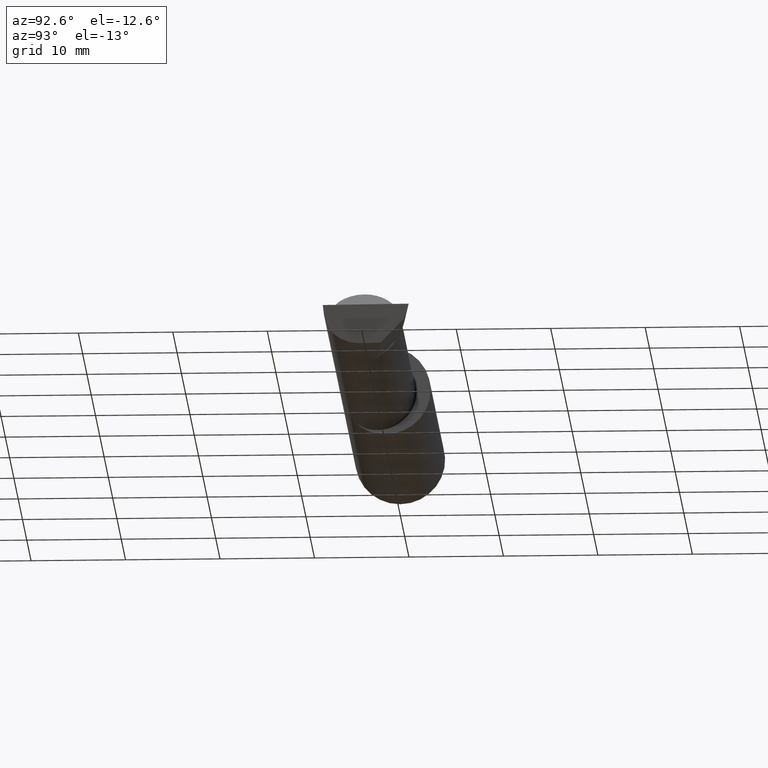
[diagram: clean part render]
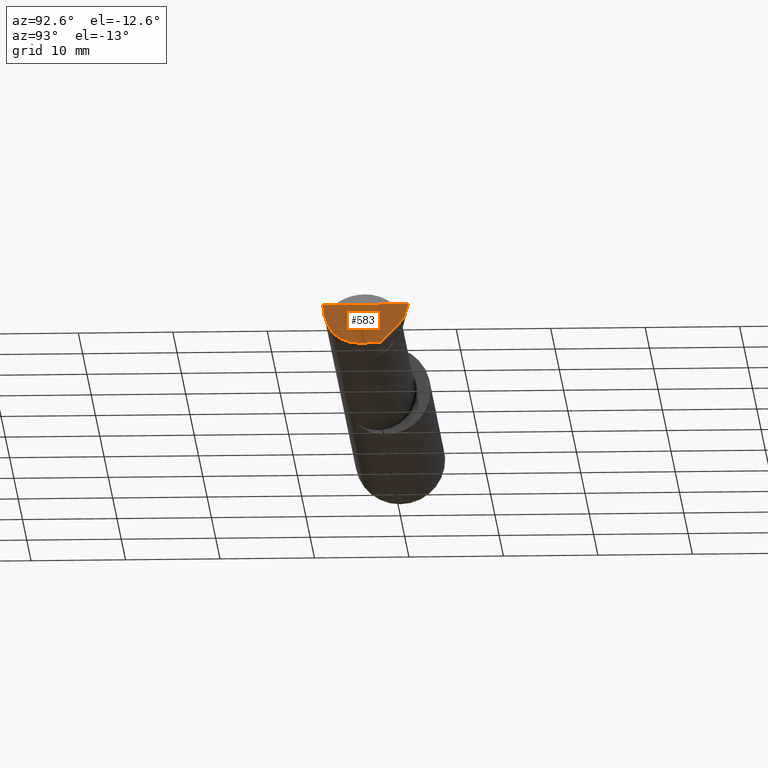
[diagram: same view with one face highlighted and labeled with its STEP entity id]
A machine part, auxiliary view. The second image highlights one B-rep face of the part: STEP entity #583.
In plain terms, the highlighted planar face has unit normal (-0.9922, 0.026, 0.1219).
Its self-contained STEP definition (entity closure, byte-faithful):
#17 = VERTEX_POINT ( 'NONE', #418 ) ;
#32 = VERTEX_POINT ( 'NONE', #614 ) ;
#79 = CARTESIAN_POINT ( 'NONE',  ( 2.990625440078235275, -0.1873499999999999888, -6.696573958807117964E-17 ) ) ;
#83 = CARTESIAN_POINT ( 'NONE',  ( 2.974910817315466360, -0.03674301662998789159, -0.1600499999999999701 ) ) ;
#91 = DIRECTION ( 'NONE',  ( -0.02617694830786920432, -0.9996573249755573709, 0.000000000000000000 ) ) ;
#98 = LINE ( 'NONE', #151, #330 ) ;
#104 = AXIS2_PLACEMENT_3D ( 'NONE', #626, #478, #622 ) ;
#143 = ORIENTED_EDGE ( 'NONE', *, *, #276, .F. ) ;
#151 = CARTESIAN_POINT ( 'NONE',  ( 2.992483720199183850, 0.1538199878950237132, -0.05760614975163640822 ) ) ;
#155 = CARTESIAN_POINT ( 'NONE',  ( 2.988992440003207296, -0.2497117568972559432, -6.673801155297139976E-17 ) ) ;
#164 = EDGE_CURVE ( 'NONE', #278, #395, #236, .T. ) ;
#192 = FACE_OUTER_BOUND ( 'NONE', #355, .T. ) ;
#195 = VECTOR ( 'NONE', #299, 39.37007874015748143 ) ;
#196 = CARTESIAN_POINT ( 'NONE',  ( 2.973833329693937433, -0.07789060880782650020, -0.1600499999999999423 ) ) ;
#204 =( BOUNDED_CURVE ( )  B_SPLINE_CURVE ( 3, ( #597, #213, #350, #261 ),
 .UNSPECIFIED., .F., .T. ) 
 B_SPLINE_CURVE_WITH_KNOTS ( ( 4, 4 ),
 ( 0.6791649766275701383, 1.360746882514768163 ),
 .UNSPECIFIED. ) 
 CURVE ( )  GEOMETRIC_REPRESENTATION_ITEM ( )  RATIONAL_B_SPLINE_CURVE ( ( 1.000000000000000000, 0.9616603987079548332, 0.9616603987079548332, 1.000000000000000000 ) ) 
 REPRESENTATION_ITEM ( '' )  );
#210 = VERTEX_POINT ( 'NONE', #432 ) ;
#213 = CARTESIAN_POINT ( 'NONE',  ( 2.980648201915111262, -0.1728409665178086418, -0.08432347972837196670 ) ) ;
#226 = EDGE_CURVE ( 'NONE', #32, #210, #485, .T. ) ;
#236 = LINE ( 'NONE', #386, #195 ) ;
#239 = DIRECTION ( 'NONE',  ( 0.1053106618241816950, 0.6976485211320171409, 0.7086580314005213044 ) ) ;
#240 = CARTESIAN_POINT ( 'NONE',  ( 2.977223734188810589, -0.1454917112299465021, -0.1180346748349054287 ) ) ;
#261 = CARTESIAN_POINT ( 'NONE',  ( 2.990625440078235275, -0.1873499999999999888, -6.696573958807117964E-17 ) ) ;
#276 = EDGE_CURVE ( 'NONE', #335, #395, #297, .T. ) ;
#278 = VERTEX_POINT ( 'NONE', #601 ) ;
#286 = ORIENTED_EDGE ( 'NONE', *, *, #620, .T. ) ;
#297 = LINE ( 'NONE', #155, #390 ) ;
#299 = DIRECTION ( 'NONE',  ( 0.1240019227989375278, 0.3022330132596638963, 0.9451342385281309433 ) ) ;
#330 = VECTOR ( 'NONE', #239, 39.37007874015748143 ) ;
#332 = PLANE ( 'NONE',  #104 ) ;
#335 = VERTEX_POINT ( 'NONE', #79 ) ;
#343 = DIRECTION ( 'NONE',  ( 0.02617694830786920085, 0.9996573249755573709, -3.650474420803249347E-18 ) ) ;
#350 = CARTESIAN_POINT ( 'NONE',  ( 2.985293537526807039, -0.1873499999999999610, -0.04340998088356440299 ) ) ;
#353 = CARTESIAN_POINT ( 'NONE',  ( 3.000000000000015099, 0.1706500000000298611, 9.270328747797009695E-14 ) ) ;
#355 = EDGE_LOOP ( 'NONE', ( #593, #363, #286, #600, #143, #361 ) ) ;
#361 = ORIENTED_EDGE ( 'NONE', *, *, #381, .F. ) ;
#363 = ORIENTED_EDGE ( 'NONE', *, *, #480, .F. ) ;
#381 = EDGE_CURVE ( 'NONE', #32, #335, #204, .T. ) ;
#386 = CARTESIAN_POINT ( 'NONE',  ( 3.000188977433814408, 0.1711105994646681949, 0.001440373173037210429 ) ) ;
#390 = VECTOR ( 'NONE', #343, 39.37007874015748854 ) ;
#395 = VERTEX_POINT ( 'NONE', #353 ) ;
#418 = CARTESIAN_POINT ( 'NONE',  ( 2.977259974483423832, 0.05296767626088495773, -0.1600499999999999701 ) ) ;
#432 = CARTESIAN_POINT ( 'NONE',  ( 2.974893613600466669, -0.03740000000000000269, -0.1600499999999999701 ) ) ;
#478 = DIRECTION ( 'NONE',  ( -0.9922060308645473947, 0.02598182930468937238, 0.1218693434051516256 ) ) ;
#480 = EDGE_CURVE ( 'NONE', #17, #210, #514, .T. ) ;
#485 =( BOUNDED_CURVE ( )  B_SPLINE_CURVE ( 3, ( #240, #628, #196, #489 ),
 .UNSPECIFIED., .F., .T. ) 
 B_SPLINE_CURVE_WITH_KNOTS ( ( 4, 4 ),
 ( 5.751779107031514293, 6.493234751459714182 ),
 .UNSPECIFIED. ) 
 CURVE ( )  GEOMETRIC_REPRESENTATION_ITEM ( )  RATIONAL_B_SPLINE_CURVE ( ( 1.000000000000000000, 0.9547092712975354667, 0.9547092712975354667, 1.000000000000000000 ) ) 
 REPRESENTATION_ITEM ( '' )  );
#489 = CARTESIAN_POINT ( 'NONE',  ( 2.974893613600466669, -0.03740000000000000269, -0.1600499999999999701 ) ) ;
#514 = LINE ( 'NONE', #83, #594 ) ;
#583 = ADVANCED_FACE ( 'NONE', ( #192 ), #332, .F. ) ;
#593 = ORIENTED_EDGE ( 'NONE', *, *, #226, .T. ) ;
#594 = VECTOR ( 'NONE', #91, 39.37007874015748143 ) ;
#597 = CARTESIAN_POINT ( 'NONE',  ( 2.977223734188810589, -0.1454917112299465021, -0.1180346748349054287 ) ) ;
#600 = ORIENTED_EDGE ( 'NONE', *, *, #164, .T. ) ;
#601 = CARTESIAN_POINT ( 'NONE',  ( 2.992127980275563814, 0.1514633278254527149, -0.06000000000000001166 ) ) ;
#614 = CARTESIAN_POINT ( 'NONE',  ( 2.977223734188810589, -0.1454917112299465021, -0.1180346748349054287 ) ) ;
#620 = EDGE_CURVE ( 'NONE', #17, #278, #98, .T. ) ;
#622 = DIRECTION ( 'NONE',  ( 0.1219104985252870421, 0.000000000000000000, 0.9925410975618672582 ) ) ;
#626 = CARTESIAN_POINT ( 'NONE',  ( 2.972657716785287896, -0.1026153499216722331, -0.1643501480114536728 ) ) ;
#628 = CARTESIAN_POINT ( 'NONE',  ( 2.974646882977781015, -0.1156304438478837349, -0.1453804992321581502 ) ) ;